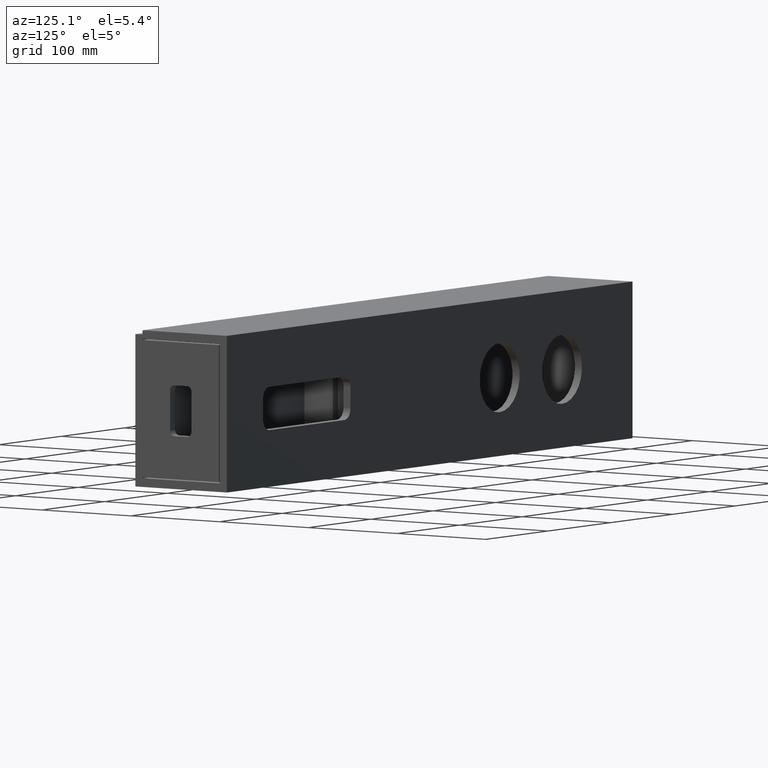
[diagram: clean part render]
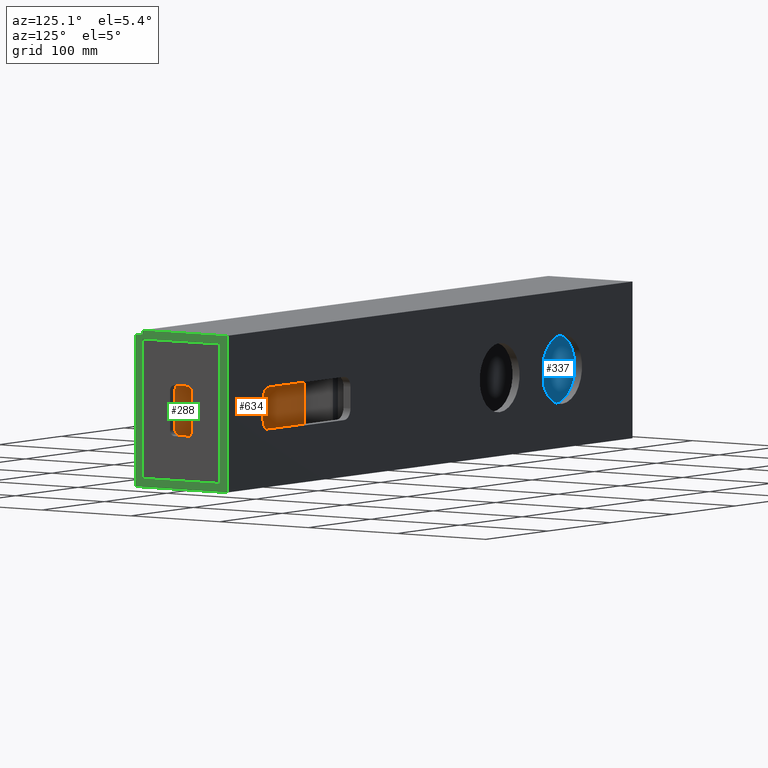
[diagram: same view with three faces highlighted in distinct colors, each labeled with its STEP entity id]
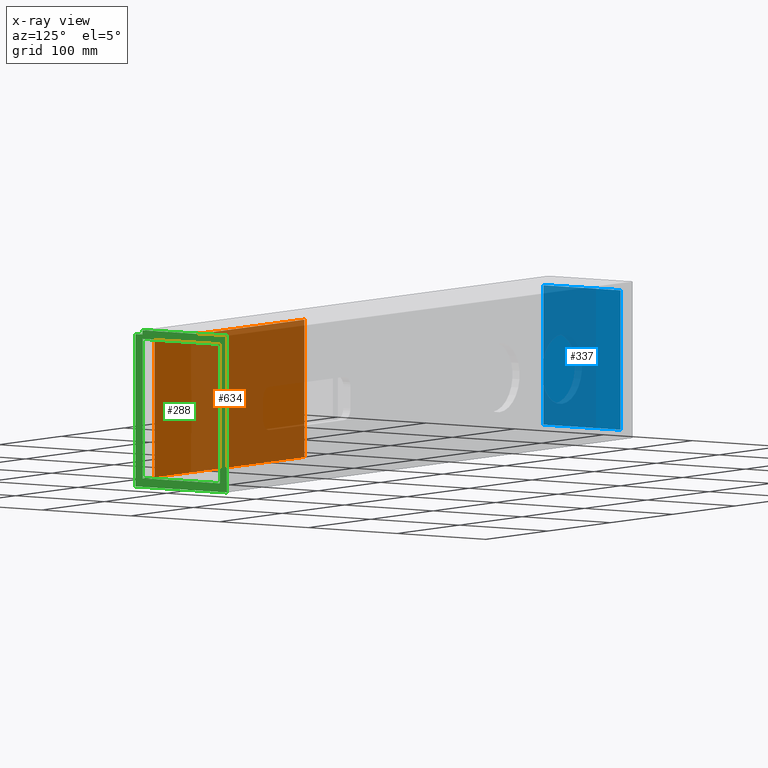
[diagram: x-ray of the same camera — body ghosted, the three highlighted faces saturated]
A machine part, auxiliary view with three faces highlighted in distinct colors.
The next image is the same camera in x-ray (body ghosted, the three faces saturated) — at least one of them is partly hidden behind the body in this view.
Their STEP definitions:

[orange] entity #634 — the highlighted planar face has unit normal (0, -1, 0).
#40 = DIRECTION ( 'NONE',  ( -0.0000000000000000000, -0.0000000000000000000, -1.000000000000000000 ) ) ;
#41 = CARTESIAN_POINT ( 'NONE',  ( 642.0000000000000000, 15.99999999999998224, 407.0592527576124553 ) ) ;
#42 = LINE ( 'NONE', #41, #124 ) ;
#124 = VECTOR ( 'NONE', #40, 1000.000000000000000 ) ;
#182 = VECTOR ( 'NONE', #1356, 1000.000000000000000 ) ;
#419 = EDGE_CURVE ( 'NONE', #632, #1309, #42, .T. ) ;
#484 = EDGE_CURVE ( 'NONE', #1134, #796, #1555, .T. ) ;
#496 = EDGE_CURVE ( 'NONE', #1134, #632, #1540, .T. ) ;
#528 = ORIENTED_EDGE ( 'NONE', *, *, #653, .T. ) ;
#541 = AXIS2_PLACEMENT_3D ( 'NONE', #1414, #1413, #1411 ) ;
#548 = VECTOR ( 'NONE', #1538, 1000.000000000000000 ) ;
#619 = ORIENTED_EDGE ( 'NONE', *, *, #496, .T. ) ;
#632 = VERTEX_POINT ( 'NONE', #1417 ) ;
#634 = ADVANCED_FACE ( 'NONE', ( #1416 ), #1415, .F. ) ;
#652 = ORIENTED_EDGE ( 'NONE', *, *, #419, .T. ) ;
#653 = EDGE_CURVE ( 'NONE', #1309, #796, #1359, .T. ) ;
#796 = VERTEX_POINT ( 'NONE', #1112 ) ;
#836 = CARTESIAN_POINT ( 'NONE',  ( 642.0000000000000000, 15.99999999999998224, 9.000000000000001776 ) ) ;
#901 = CARTESIAN_POINT ( 'NONE',  ( 401.9999999999999432, 15.99999999999995204, 135.9999999999999432 ) ) ;
#1112 = CARTESIAN_POINT ( 'NONE',  ( 401.9999999999999432, 15.99999999999995204, 9.000000000000001776 ) ) ;
#1134 = VERTEX_POINT ( 'NONE', #901 ) ;
#1309 = VERTEX_POINT ( 'NONE', #836 ) ;
#1336 = ORIENTED_EDGE ( 'NONE', *, *, #484, .F. ) ;
#1356 = DIRECTION ( 'NONE',  ( -1.000000000000000000, -1.301042606982605074E-16, 0.0000000000000000000 ) ) ;
#1358 = CARTESIAN_POINT ( 'NONE',  ( 642.0000000000000000, 15.99999999999998224, 9.000000000000001776 ) ) ;
#1359 = LINE ( 'NONE', #1358, #182 ) ;
#1372 = EDGE_LOOP ( 'NONE', ( #1336, #619, #652, #528 ) ) ;
#1411 = DIRECTION ( 'NONE',  ( 1.000000000000000000, 1.301042606982605074E-16, 0.0000000000000000000 ) ) ;
#1413 = DIRECTION ( 'NONE',  ( 1.301042606982605074E-16, -1.000000000000000000, 0.0000000000000000000 ) ) ;
#1414 = CARTESIAN_POINT ( 'NONE',  ( 642.0000000000000000, 15.99999999999998224, 407.0592527576124553 ) ) ;
#1415 = PLANE ( 'NONE',  #541 ) ;
#1416 = FACE_OUTER_BOUND ( 'NONE', #1372, .T. ) ;
#1417 = CARTESIAN_POINT ( 'NONE',  ( 642.0000000000000000, 15.99999999999998224, 135.9999999999999432 ) ) ;
#1524 = VECTOR ( 'NONE', #1551, 1000.000000000000000 ) ;
#1538 = DIRECTION ( 'NONE',  ( 1.000000000000000000, 1.301042606982605074E-16, 0.0000000000000000000 ) ) ;
#1539 = CARTESIAN_POINT ( 'NONE',  ( 642.0000000000000000, 15.99999999999998224, 135.9999999999999432 ) ) ;
#1540 = LINE ( 'NONE', #1539, #548 ) ;
#1551 = DIRECTION ( 'NONE',  ( -0.0000000000000000000, -0.0000000000000000000, -1.000000000000000000 ) ) ;
#1554 = CARTESIAN_POINT ( 'NONE',  ( 401.9999999999999432, 15.99999999999995204, 407.0592527576124553 ) ) ;
#1555 = LINE ( 'NONE', #1554, #1524 ) ;

[blue] entity #337 — the highlighted planar face has unit normal (1, 0, -0).
#135 = DIRECTION ( 'NONE',  ( -0.0000000000000000000, 0.0000000000000000000, -1.000000000000000000 ) ) ;
#136 = CARTESIAN_POINT ( 'NONE',  ( 8.000000000000007105, 8.000000000000000000, 8.000000000000000000 ) ) ;
#137 = LINE ( 'NONE', #136, #575 ) ;
#163 = VECTOR ( 'NONE', #448, 1000.000000000000000 ) ;
#190 = DIRECTION ( 'NONE',  ( -0.0000000000000000000, 0.0000000000000000000, -1.000000000000000000 ) ) ;
#191 = DIRECTION ( 'NONE',  ( 1.000000000000000000, 0.0000000000000000000, -0.0000000000000000000 ) ) ;
#192 = CARTESIAN_POINT ( 'NONE',  ( 8.000000000000000000, 0.0000000000000000000, 0.0000000000000000000 ) ) ;
#194 = PLANE ( 'NONE',  #1257 ) ;
#195 = FACE_OUTER_BOUND ( 'NONE', #1483, .T. ) ;
#255 = EDGE_CURVE ( 'NONE', #1022, #1327, #450, .T. ) ;
#337 = ADVANCED_FACE ( 'NONE', ( #195 ), #194, .T. ) ;
#364 = EDGE_CURVE ( 'NONE', #806, #1022, #137, .T. ) ;
#448 = DIRECTION ( 'NONE',  ( -0.0000000000000000000, 1.000000000000000000, 0.0000000000000000000 ) ) ;
#449 = CARTESIAN_POINT ( 'NONE',  ( 8.000000000000007105, 8.000000000000000000, 8.000000000000000000 ) ) ;
#450 = LINE ( 'NONE', #449, #163 ) ;
#575 = VECTOR ( 'NONE', #135, 1000.000000000000000 ) ;
#689 = EDGE_CURVE ( 'NONE', #1305, #806, #1247, .T. ) ;
#707 = DIRECTION ( 'NONE',  ( 0.0000000000000000000, -2.151595008963482285E-16, 1.000000000000000000 ) ) ;
#708 = CARTESIAN_POINT ( 'NONE',  ( 8.000000000000007105, 95.00000000000000000, 8.000000000000000000 ) ) ;
#711 = LINE ( 'NONE', #708, #1339 ) ;
#806 = VERTEX_POINT ( 'NONE', #1089 ) ;
#831 = CARTESIAN_POINT ( 'NONE',  ( 8.000000000000007105, 95.00000000000000000, 8.000000000000000000 ) ) ;
#838 = ORIENTED_EDGE ( 'NONE', *, *, #255, .T. ) ;
#839 = CARTESIAN_POINT ( 'NONE',  ( 8.000000000000007105, 94.99999999999997158, 136.9999999999999432 ) ) ;
#897 = ORIENTED_EDGE ( 'NONE', *, *, #689, .T. ) ;
#938 = CARTESIAN_POINT ( 'NONE',  ( 8.000000000000007105, 8.000000000000000000, 8.000000000000000000 ) ) ;
#968 = ORIENTED_EDGE ( 'NONE', *, *, #364, .T. ) ;
#997 = ORIENTED_EDGE ( 'NONE', *, *, #1519, .T. ) ;
#1022 = VERTEX_POINT ( 'NONE', #938 ) ;
#1089 = CARTESIAN_POINT ( 'NONE',  ( 8.000000000000007105, 8.000000000000000000, 136.9999999999999432 ) ) ;
#1244 = DIRECTION ( 'NONE',  ( 0.0000000000000000000, -1.000000000000000000, 0.0000000000000000000 ) ) ;
#1246 = CARTESIAN_POINT ( 'NONE',  ( 8.000000000000007105, 8.000000000000000000, 136.9999999999999432 ) ) ;
#1247 = LINE ( 'NONE', #1246, #1314 ) ;
#1257 = AXIS2_PLACEMENT_3D ( 'NONE', #192, #191, #190 ) ;
#1305 = VERTEX_POINT ( 'NONE', #839 ) ;
#1314 = VECTOR ( 'NONE', #1244, 1000.000000000000000 ) ;
#1327 = VERTEX_POINT ( 'NONE', #831 ) ;
#1339 = VECTOR ( 'NONE', #707, 1000.000000000000000 ) ;
#1483 = EDGE_LOOP ( 'NONE', ( #968, #838, #997, #897 ) ) ;
#1519 = EDGE_CURVE ( 'NONE', #1327, #1305, #711, .T. ) ;

[green] entity #288 — the highlighted planar face has unit normal (1, 0, -0).
#2 = DIRECTION ( 'NONE',  ( 0.0000000000000000000, -9.570888143320318106E-17, 1.000000000000000000 ) ) ;
#5 = CARTESIAN_POINT ( 'NONE',  ( 650.0000000000000000, 103.0000000000000000, 0.0000000000000000000 ) ) ;
#6 = LINE ( 'NONE', #5, #818 ) ;
#51 = VECTOR ( 'NONE', #1091, 1000.000000000000000 ) ;
#86 = CARTESIAN_POINT ( 'NONE',  ( 650.0000000000000000, 7.999999999999983125, 141.0000000000000000 ) ) ;
#174 = VERTEX_POINT ( 'NONE', #513 ) ;
#198 = VECTOR ( 'NONE', #1169, 1000.000000000000000 ) ;
#200 = VECTOR ( 'NONE', #1122, 1000.000000000000000 ) ;
#288 = ADVANCED_FACE ( 'NONE', ( #358, #356 ), #353, .T. ) ;
#296 = EDGE_CURVE ( 'NONE', #1092, #1448, #326, .T. ) ;
#320 = DIRECTION ( 'NONE',  ( 0.0000000000000000000, 1.000000000000000000, 0.0000000000000000000 ) ) ;
#324 = CARTESIAN_POINT ( 'NONE',  ( 650.0000000000000000, 8.000000000000000000, 8.000000000000000000 ) ) ;
#326 = LINE ( 'NONE', #324, #1045 ) ;
#347 = DIRECTION ( 'NONE',  ( -0.0000000000000000000, 0.0000000000000000000, -1.000000000000000000 ) ) ;
#349 = DIRECTION ( 'NONE',  ( 1.000000000000000000, 0.0000000000000000000, -0.0000000000000000000 ) ) ;
#350 = CARTESIAN_POINT ( 'NONE',  ( 650.0000000000000000, 0.0000000000000000000, 0.0000000000000000000 ) ) ;
#353 = PLANE ( 'NONE',  #560 ) ;
#356 = FACE_BOUND ( 'NONE', #664, .T. ) ;
#358 = FACE_OUTER_BOUND ( 'NONE', #811, .T. ) ;
#470 = EDGE_CURVE ( 'NONE', #900, #853, #6, .T. ) ;
#493 = ORIENTED_EDGE ( 'NONE', *, *, #1216, .F. ) ;
#497 = EDGE_CURVE ( 'NONE', #612, #1403, #1537, .T. ) ;
#502 = EDGE_CURVE ( 'NONE', #1403, #1092, #1532, .T. ) ;
#513 = CARTESIAN_POINT ( 'NONE',  ( 650.0000000000000000, -1.734723475976807094E-14, 141.0000000000000000 ) ) ;
#540 = ORIENTED_EDGE ( 'NONE', *, *, #296, .F. ) ;
#543 = VECTOR ( 'NONE', #1208, 1000.000000000000000 ) ;
#560 = AXIS2_PLACEMENT_3D ( 'NONE', #350, #349, #347 ) ;
#576 = CARTESIAN_POINT ( 'NONE',  ( 650.0000000000000000, 95.00000000000000000, 8.000000000000000000 ) ) ;
#612 = VERTEX_POINT ( 'NONE', #1451 ) ;
#635 = VECTOR ( 'NONE', #1055, 1000.000000000000000 ) ;
#664 = EDGE_LOOP ( 'NONE', ( #493, #540, #1233, #1399 ) ) ;
#683 = VERTEX_POINT ( 'NONE', #1254 ) ;
#722 = VECTOR ( 'NONE', #1529, 1000.000000000000000 ) ;
#729 = EDGE_CURVE ( 'NONE', #853, #683, #1214, .T. ) ;
#743 = EDGE_CURVE ( 'NONE', #683, #1453, #1174, .T. ) ;
#750 = CARTESIAN_POINT ( 'NONE',  ( 650.0000000000000000, 7.999999999999983125, 141.0000000000000000 ) ) ;
#775 = CARTESIAN_POINT ( 'NONE',  ( 650.0000000000000000, 8.000000000000000000, 136.9999999999999432 ) ) ;
#776 = EDGE_CURVE ( 'NONE', #174, #1261, #1126, .T. ) ;
#777 = ORIENTED_EDGE ( 'NONE', *, *, #743, .T. ) ;
#791 = ORIENTED_EDGE ( 'NONE', *, *, #776, .T. ) ;
#804 = EDGE_CURVE ( 'NONE', #1453, #174, #1093, .T. ) ;
#811 = EDGE_LOOP ( 'NONE', ( #1325, #1353, #1433, #777, #931, #791 ) ) ;
#818 = VECTOR ( 'NONE', #2, 1000.000000000000000 ) ;
#837 = EDGE_CURVE ( 'NONE', #1261, #900, #1061, .T. ) ;
#853 = VERTEX_POINT ( 'NONE', #1040 ) ;
#860 = CARTESIAN_POINT ( 'NONE',  ( 650.0000000000000000, 0.0000000000000000000, 0.0000000000000000000 ) ) ;
#870 = DIRECTION ( 'NONE',  ( 0.0000000000000000000, -2.151595008963482531E-16, 1.000000000000000000 ) ) ;
#871 = CARTESIAN_POINT ( 'NONE',  ( 650.0000000000000000, 95.00000000000000000, 8.000000000000000000 ) ) ;
#873 = LINE ( 'NONE', #871, #1073 ) ;
#900 = VERTEX_POINT ( 'NONE', #995 ) ;
#918 = CARTESIAN_POINT ( 'NONE',  ( 650.0000000000000000, 8.000000000000000000, 8.000000000000000000 ) ) ;
#931 = ORIENTED_EDGE ( 'NONE', *, *, #804, .T. ) ;
#981 = VECTOR ( 'NONE', #1534, 1000.000000000000000 ) ;
#995 = CARTESIAN_POINT ( 'NONE',  ( 650.0000000000000000, 103.0000000000000000, 0.0000000000000000000 ) ) ;
#1040 = CARTESIAN_POINT ( 'NONE',  ( 650.0000000000000000, 102.9999999999999858, 144.9999999999999716 ) ) ;
#1045 = VECTOR ( 'NONE', #320, 1000.000000000000000 ) ;
#1055 = DIRECTION ( 'NONE',  ( 0.0000000000000000000, 1.000000000000000000, 0.0000000000000000000 ) ) ;
#1058 = CARTESIAN_POINT ( 'NONE',  ( 650.0000000000000000, 0.0000000000000000000, 0.0000000000000000000 ) ) ;
#1061 = LINE ( 'NONE', #1058, #635 ) ;
#1073 = VECTOR ( 'NONE', #870, 1000.000000000000000 ) ;
#1091 = DIRECTION ( 'NONE',  ( 0.0000000000000000000, -1.000000000000000000, 0.0000000000000000000 ) ) ;
#1092 = VERTEX_POINT ( 'NONE', #918 ) ;
#1093 = LINE ( 'NONE', #86, #51 ) ;
#1122 = DIRECTION ( 'NONE',  ( -0.0000000000000000000, 1.230300337572203632E-16, -1.000000000000000000 ) ) ;
#1124 = CARTESIAN_POINT ( 'NONE',  ( 650.0000000000000000, 0.0000000000000000000, 0.0000000000000000000 ) ) ;
#1126 = LINE ( 'NONE', #1124, #200 ) ;
#1169 = DIRECTION ( 'NONE',  ( 0.0000000000000000000, 0.0000000000000000000, -1.000000000000000000 ) ) ;
#1172 = CARTESIAN_POINT ( 'NONE',  ( 650.0000000000000000, 7.999999999999983125, 145.0000000000000000 ) ) ;
#1174 = LINE ( 'NONE', #1172, #198 ) ;
#1208 = DIRECTION ( 'NONE',  ( -0.0000000000000000000, -1.000000000000000000, 2.921639538487254261E-16 ) ) ;
#1211 = CARTESIAN_POINT ( 'NONE',  ( 650.0000000000000000, 7.999999999999983125, 145.0000000000000000 ) ) ;
#1214 = LINE ( 'NONE', #1211, #543 ) ;
#1216 = EDGE_CURVE ( 'NONE', #1448, #612, #873, .T. ) ;
#1233 = ORIENTED_EDGE ( 'NONE', *, *, #502, .F. ) ;
#1254 = CARTESIAN_POINT ( 'NONE',  ( 650.0000000000000000, 7.999999999999983125, 145.0000000000000000 ) ) ;
#1261 = VERTEX_POINT ( 'NONE', #860 ) ;
#1325 = ORIENTED_EDGE ( 'NONE', *, *, #837, .T. ) ;
#1353 = ORIENTED_EDGE ( 'NONE', *, *, #470, .T. ) ;
#1399 = ORIENTED_EDGE ( 'NONE', *, *, #497, .F. ) ;
#1403 = VERTEX_POINT ( 'NONE', #775 ) ;
#1433 = ORIENTED_EDGE ( 'NONE', *, *, #729, .T. ) ;
#1448 = VERTEX_POINT ( 'NONE', #576 ) ;
#1451 = CARTESIAN_POINT ( 'NONE',  ( 650.0000000000000000, 94.99999999999997158, 136.9999999999999432 ) ) ;
#1453 = VERTEX_POINT ( 'NONE', #750 ) ;
#1529 = DIRECTION ( 'NONE',  ( -0.0000000000000000000, -0.0000000000000000000, -1.000000000000000000 ) ) ;
#1531 = CARTESIAN_POINT ( 'NONE',  ( 650.0000000000000000, 8.000000000000000000, 8.000000000000000000 ) ) ;
#1532 = LINE ( 'NONE', #1531, #722 ) ;
#1534 = DIRECTION ( 'NONE',  ( -0.0000000000000000000, -1.000000000000000000, -0.0000000000000000000 ) ) ;
#1536 = CARTESIAN_POINT ( 'NONE',  ( 650.0000000000000000, 8.000000000000000000, 136.9999999999999432 ) ) ;
#1537 = LINE ( 'NONE', #1536, #981 ) ;